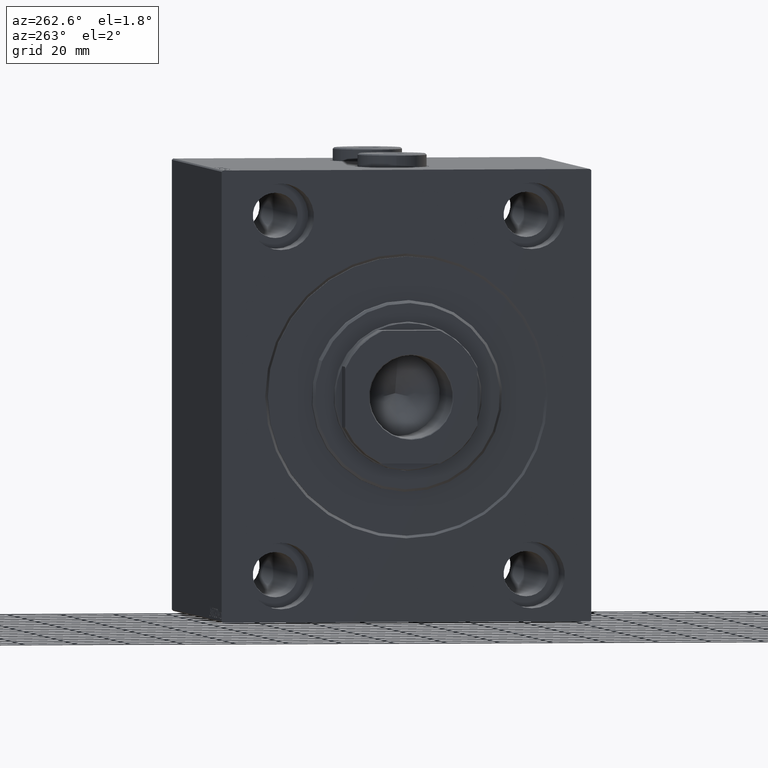
[diagram: clean part render]
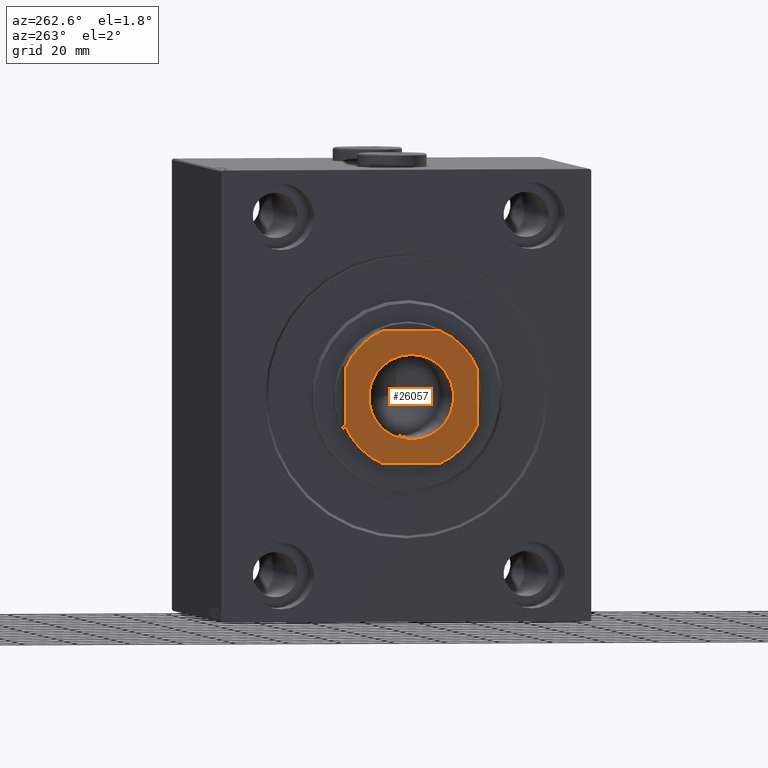
[diagram: same view with one face highlighted and labeled with its STEP entity id]
A machine part, auxiliary view. The second image highlights one B-rep face of the part: STEP entity #26057.
In plain terms, the highlighted planar face has unit normal (-1, 0, 0).
Its self-contained STEP definition (entity closure, byte-faithful):
#786 = EDGE_CURVE ( 'NONE', #42728, #9808, #32255, .T. ) ;
#1001 = CIRCLE ( 'NONE', #39575, 27.20000000000002416 ) ;
#1297 = CARTESIAN_POINT ( 'NONE',  ( 0.000000000000000000, 0.000000000000000000, 64.99999999999998579 ) ) ;
#2873 = EDGE_CURVE ( 'NONE', #28075, #15930, #39507, .T. ) ;
#5030 = LINE ( 'NONE', #29200, #44245 ) ;
#5378 = ORIENTED_EDGE ( 'NONE', *, *, #6067, .T. ) ;
#5576 = ORIENTED_EDGE ( 'NONE', *, *, #39716, .T. ) ;
#6067 = EDGE_CURVE ( 'NONE', #13238, #20931, #1001, .T. ) ;
#7379 = EDGE_CURVE ( 'NONE', #10583, #42728, #43644, .T. ) ;
#8000 = DIRECTION ( 'NONE',  ( -1.000000000000000000, -6.938893903907228378E-17, -0.000000000000000000 ) ) ;
#8581 = EDGE_CURVE ( 'NONE', #41415, #13238, #27194, .T. ) ;
#9113 = VECTOR ( 'NONE', #33505, 1000.000000000000000 ) ;
#9539 = FACE_OUTER_BOUND ( 'NONE', #27878, .T. ) ;
#9808 = VERTEX_POINT ( 'NONE', #24818 ) ;
#9822 = EDGE_CURVE ( 'NONE', #40461, #41415, #11672, .T. ) ;
#10583 = VERTEX_POINT ( 'NONE', #15448 ) ;
#10808 = AXIS2_PLACEMENT_3D ( 'NONE', #18182, #18399, #17960 ) ;
#11394 = ORIENTED_EDGE ( 'NONE', *, *, #786, .T. ) ;
#11672 = CIRCLE ( 'NONE', #37171, 27.20000000000001350 ) ;
#11686 = DIRECTION ( 'NONE',  ( 0.000000000000000000, -0.000000000000000000, -1.000000000000000000 ) ) ;
#12041 = DIRECTION ( 'NONE',  ( -0.000000000000000000, 0.000000000000000000, 1.000000000000000000 ) ) ;
#12185 = CIRCLE ( 'NONE', #31848, 16.04999999999996874 ) ;
#13238 = VERTEX_POINT ( 'NONE', #36084 ) ;
#13532 = VERTEX_POINT ( 'NONE', #39892 ) ;
#14231 = VECTOR ( 'NONE', #23779, 1000.000000000000000 ) ;
#14383 = ORIENTED_EDGE ( 'NONE', *, *, #9822, .T. ) ;
#15183 = ORIENTED_EDGE ( 'NONE', *, *, #2873, .T. ) ;
#15448 = CARTESIAN_POINT ( 'NONE',  ( -25.00000000000000000, 10.71634265969503730, 64.99999999999998579 ) ) ;
#15455 = DIRECTION ( 'NONE',  ( 1.000000000000000000, 0.000000000000000000, 0.000000000000000000 ) ) ;
#15930 = VERTEX_POINT ( 'NONE', #31321 ) ;
#16149 = CARTESIAN_POINT ( 'NONE',  ( 0.000000000000000000, 0.000000000000000000, 64.99999999999998579 ) ) ;
#16385 = FACE_BOUND ( 'NONE', #44001, .T. ) ;
#16406 = LINE ( 'NONE', #34174, #9113 ) ;
#17702 = AXIS2_PLACEMENT_3D ( 'NONE', #38346, #31266, #40862 ) ;
#17960 = DIRECTION ( 'NONE',  ( 1.000000000000000000, 0.000000000000000000, 0.000000000000000000 ) ) ;
#18182 = CARTESIAN_POINT ( 'NONE',  ( 0.000000000000000000, 0.000000000000000000, 64.99999999999998579 ) ) ;
#18399 = DIRECTION ( 'NONE',  ( -0.000000000000000000, 0.000000000000000000, 1.000000000000000000 ) ) ;
#19037 = DIRECTION ( 'NONE',  ( -0.000000000000000000, 0.000000000000000000, 1.000000000000000000 ) ) ;
#19137 = DIRECTION ( 'NONE',  ( 0.000000000000000000, -0.000000000000000000, -1.000000000000000000 ) ) ;
#19564 = PLANE ( 'NONE',  #39691 ) ;
#20053 = DIRECTION ( 'NONE',  ( 1.000000000000000000, 0.000000000000000000, 0.000000000000000000 ) ) ;
#20931 = VERTEX_POINT ( 'NONE', #29513 ) ;
#21611 = EDGE_CURVE ( 'NONE', #9808, #40461, #16406, .T. ) ;
#22248 = DIRECTION ( 'NONE',  ( 1.000000000000000000, 0.000000000000000000, 0.000000000000000000 ) ) ;
#22752 = CARTESIAN_POINT ( 'NONE',  ( 25.00000000000000000, -10.71634265969507638, 64.99999999999998579 ) ) ;
#22911 = CARTESIAN_POINT ( 'NONE',  ( -25.00000000000000355, 25.00000000000000000, 64.99999999999998579 ) ) ;
#23779 = DIRECTION ( 'NONE',  ( -6.938893903907228378E-17, 1.000000000000000000, -0.000000000000000000 ) ) ;
#24315 = VECTOR ( 'NONE', #40232, 1000.000000000000000 ) ;
#24781 = CARTESIAN_POINT ( 'NONE',  ( -24.99999999999999645, -10.71634265969507460, 64.99999999999998579 ) ) ;
#24818 = CARTESIAN_POINT ( 'NONE',  ( -10.71634265969507283, -25.00000000000000000, 64.99999999999998579 ) ) ;
#25902 = ORIENTED_EDGE ( 'NONE', *, *, #34308, .T. ) ;
#26057 = ADVANCED_FACE ( 'NONE', ( #16385, #9539 ), #19564, .T. ) ;
#26641 = DIRECTION ( 'NONE',  ( 1.000000000000000000, 0.000000000000000000, 0.000000000000000000 ) ) ;
#27194 = LINE ( 'NONE', #41089, #14231 ) ;
#27789 = CARTESIAN_POINT ( 'NONE',  ( 0.000000000000000000, 0.000000000000000000, 64.99999999999998579 ) ) ;
#27878 = EDGE_LOOP ( 'NONE', ( #34896, #5378, #25902, #5576, #30186, #11394, #37275, #14383 ) ) ;
#28075 = VERTEX_POINT ( 'NONE', #37130 ) ;
#29200 = CARTESIAN_POINT ( 'NONE',  ( -25.00000000000000355, 25.00000000000000000, 64.99999999999998579 ) ) ;
#29513 = CARTESIAN_POINT ( 'NONE',  ( 10.71634265969509769, 25.00000000000000355, 64.99999999999998579 ) ) ;
#30186 = ORIENTED_EDGE ( 'NONE', *, *, #7379, .T. ) ;
#30491 = CARTESIAN_POINT ( 'NONE',  ( 10.71634265969508704, -24.99999999999999289, 64.99999999999998579 ) ) ;
#31266 = DIRECTION ( 'NONE',  ( -0.000000000000000000, 0.000000000000000000, 1.000000000000000000 ) ) ;
#31321 = CARTESIAN_POINT ( 'NONE',  ( 16.04999999999996874, 0.000000000000000000, 64.99999999999998579 ) ) ;
#31848 = AXIS2_PLACEMENT_3D ( 'NONE', #27789, #11686, #39734 ) ;
#32255 = CIRCLE ( 'NONE', #17702, 27.20000000000000995 ) ;
#33000 = EDGE_CURVE ( 'NONE', #15930, #28075, #12185, .T. ) ;
#33505 = DIRECTION ( 'NONE',  ( 1.000000000000000000, 0.000000000000000000, 0.000000000000000000 ) ) ;
#33689 = DIRECTION ( 'NONE',  ( -0.000000000000000000, 0.000000000000000000, 1.000000000000000000 ) ) ;
#34174 = CARTESIAN_POINT ( 'NONE',  ( -24.99999999999999289, -25.00000000000000000, 64.99999999999998579 ) ) ;
#34308 = EDGE_CURVE ( 'NONE', #20931, #13532, #5030, .T. ) ;
#34896 = ORIENTED_EDGE ( 'NONE', *, *, #8581, .T. ) ;
#35111 = AXIS2_PLACEMENT_3D ( 'NONE', #37390, #19137, #20053 ) ;
#36084 = CARTESIAN_POINT ( 'NONE',  ( 25.00000000000000000, 10.71634265969510658, 64.99999999999998579 ) ) ;
#36888 = CARTESIAN_POINT ( 'NONE',  ( 0.000000000000000000, 0.000000000000000000, 64.99999999999998579 ) ) ;
#37130 = CARTESIAN_POINT ( 'NONE',  ( -16.04999999999996874, 1.965558112631497866E-15, 64.99999999999998579 ) ) ;
#37171 = AXIS2_PLACEMENT_3D ( 'NONE', #36888, #33689, #26641 ) ;
#37275 = ORIENTED_EDGE ( 'NONE', *, *, #21611, .T. ) ;
#37390 = CARTESIAN_POINT ( 'NONE',  ( 0.000000000000000000, 0.000000000000000000, 64.99999999999998579 ) ) ;
#38346 = CARTESIAN_POINT ( 'NONE',  ( 0.000000000000000000, 0.000000000000000000, 64.99999999999998579 ) ) ;
#39224 = ORIENTED_EDGE ( 'NONE', *, *, #33000, .T. ) ;
#39507 = CIRCLE ( 'NONE', #35111, 16.04999999999996874 ) ;
#39575 = AXIS2_PLACEMENT_3D ( 'NONE', #1297, #19037, #22248 ) ;
#39691 = AXIS2_PLACEMENT_3D ( 'NONE', #16149, #12041, #15455 ) ;
#39716 = EDGE_CURVE ( 'NONE', #13532, #10583, #44304, .T. ) ;
#39734 = DIRECTION ( 'NONE',  ( 1.000000000000000000, 0.000000000000000000, 0.000000000000000000 ) ) ;
#39892 = CARTESIAN_POINT ( 'NONE',  ( -10.71634265969503019, 25.00000000000000355, 64.99999999999998579 ) ) ;
#40232 = DIRECTION ( 'NONE',  ( 2.081668171172168513E-16, -1.000000000000000000, 0.000000000000000000 ) ) ;
#40461 = VERTEX_POINT ( 'NONE', #30491 ) ;
#40862 = DIRECTION ( 'NONE',  ( 1.000000000000000000, 0.000000000000000000, 0.000000000000000000 ) ) ;
#41089 = CARTESIAN_POINT ( 'NONE',  ( 24.99999999999999645, 25.00000000000000355, 64.99999999999998579 ) ) ;
#41415 = VERTEX_POINT ( 'NONE', #22752 ) ;
#42728 = VERTEX_POINT ( 'NONE', #24781 ) ;
#43644 = LINE ( 'NONE', #22911, #24315 ) ;
#44001 = EDGE_LOOP ( 'NONE', ( #39224, #15183 ) ) ;
#44245 = VECTOR ( 'NONE', #8000, 1000.000000000000000 ) ;
#44304 = CIRCLE ( 'NONE', #10808, 27.19999999999999574 ) ;